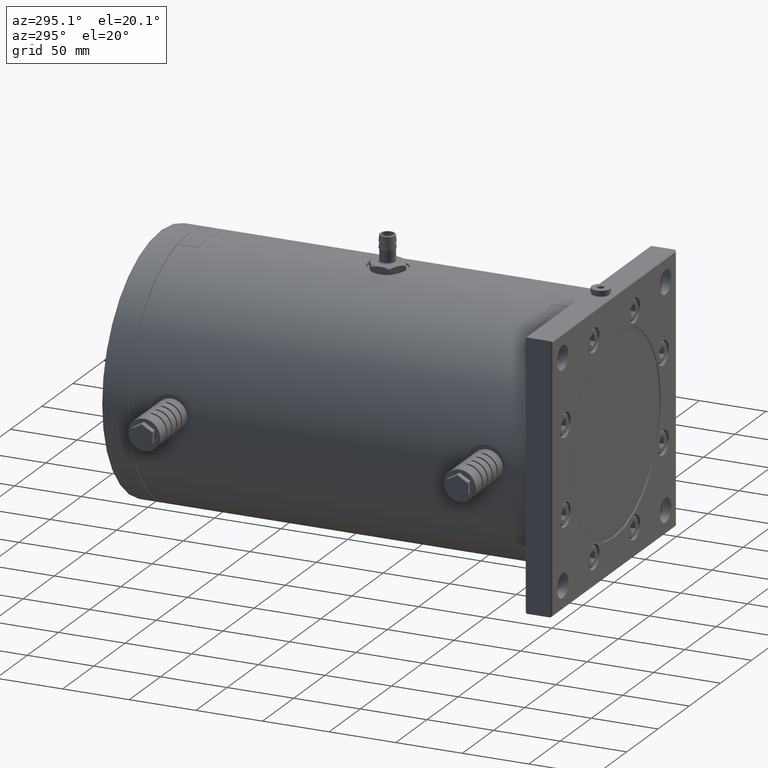
[diagram: clean part render]
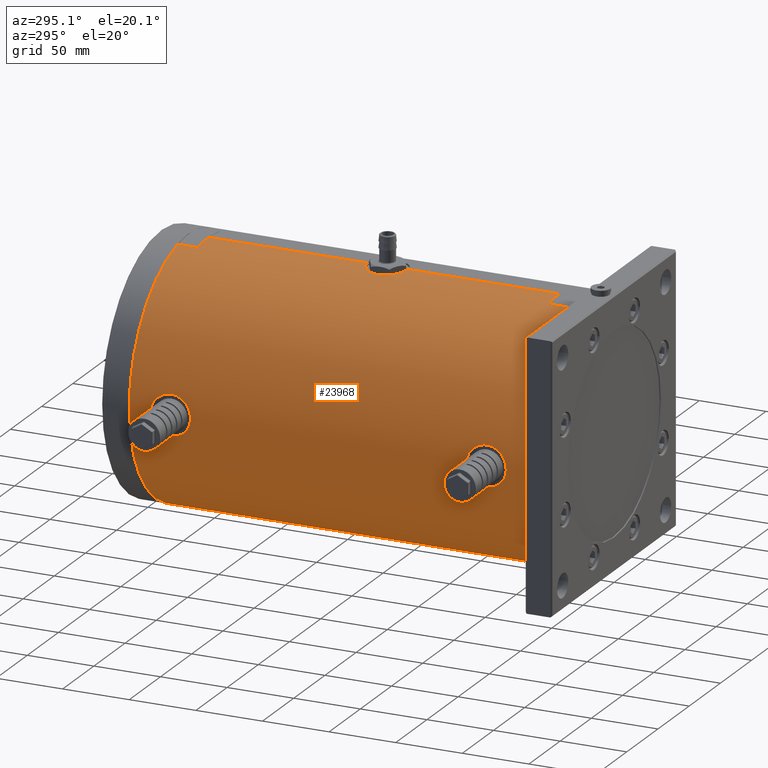
[diagram: same view with one face highlighted and labeled with its STEP entity id]
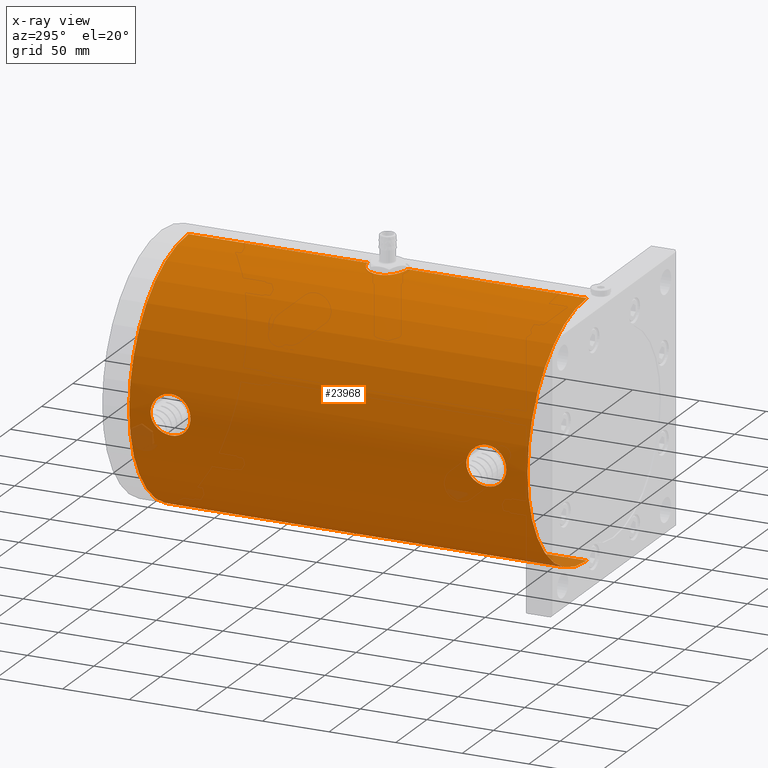
[diagram: x-ray of the same camera — body ghosted, the highlighted face saturated]
A machine part, auxiliary view. The second image highlights one B-rep face of the part: STEP entity #23968.
The next image is the same camera in x-ray: the body ghosted, the highlighted face saturated — about 1% of this face is hidden behind the body in this view.
In plain terms, the highlighted cylindrical surface (partial cylindrical patch) has radius 95 mm, axis along (0, -1, 0).
Its self-contained STEP definition (entity closure, byte-faithful):
#51 = CARTESIAN_POINT ( 'NONE',  ( -94.10670830719668300, 296.0006045169263300, -12.99930900640184100 ) ) ;
#396 = CARTESIAN_POINT ( 'NONE',  ( -94.59746841088082200, 300.6964620015556900, -8.745601748811100900 ) ) ;
#567 = CARTESIAN_POINT ( 'NONE',  ( -94.32759826050448700, 298.4079888304420400, -11.30431237425611500 ) ) ;
#677 = CARTESIAN_POINT ( 'NONE',  ( -94.87895241512907800, 302.7139216482131600, 4.817449934140620700 ) ) ;
#735 = CARTESIAN_POINT ( 'NONE',  ( -93.88853434243830500, 292.4086399488543900, 14.49014124802632300 ) ) ;
#766 = CARTESIAN_POINT ( 'NONE',  ( -94.48389310920484300, 40.20057625972086900, 9.913491127055863200 ) ) ;
#1043 = EDGE_CURVE ( 'NONE', #13489, #9054, #40050, .T. ) ;
#1442 = CARTESIAN_POINT ( 'NONE',  ( -94.77159016678152200, 64.98304233937553000, 6.646186053362664700 ) ) ;
#1573 = CARTESIAN_POINT ( 'NONE',  ( -0.9897520622051082500, 184.9753536299963100, 94.99609958115590300 ) ) ;
#1615 = CARTESIAN_POINT ( 'NONE',  ( -93.80831519646858400, 52.49251447707900600, 15.00000000000000000 ) ) ;
#1778 = CARTESIAN_POINT ( 'NONE',  ( -94.87895241512907800, 65.71392164821310200, 4.817449934140597600 ) ) ;
#2116 = CARTESIAN_POINT ( 'NONE',  ( -94.66937268861475700, 38.75778764119900900, 7.929638499274803500 ) ) ;
#2128 = CARTESIAN_POINT ( 'NONE',  ( -94.48443208369988600, 299.7873359972439300, 9.891340991452203500 ) ) ;
#2171 = CARTESIAN_POINT ( 'NONE',  ( -94.77159016678152200, 301.9830423393755200, 6.646186053362677100 ) ) ;
#2925 = CARTESIAN_POINT ( 'NONE',  ( -94.36748313137685800, 41.23649170612783600, 10.94983873391597700 ) ) ;
#3000 = CARTESIAN_POINT ( 'NONE',  ( -94.44530702829615600, 277.5438817851430700, -10.25707442559736800 ) ) ;
#3166 = CARTESIAN_POINT ( 'NONE',  ( -95.00002888294113700, 273.4998170746932300, -0.4844051046419959300 ) ) ;
#3340 = CARTESIAN_POINT ( 'NONE',  ( -11.92139876936948900, 179.1569248440521300, 94.25064967138209200 ) ) ;
#3593 = CARTESIAN_POINT ( 'NONE',  ( -94.03988826415103100, 44.84253263786659700, 13.47755452698379000 ) ) ;
#3838 = CARTESIAN_POINT ( 'NONE',  ( -93.93135529095216900, 293.3290332652563300, -14.20990197106558900 ) ) ;
#3915 = CARTESIAN_POINT ( 'NONE',  ( -94.25022968977724200, 42.34798509891982100, -11.92451984968890800 ) ) ;
#4292 = CARTESIAN_POINT ( 'NONE',  ( -14.99999999999998800, 170.0000000000000000, 93.80831519646859800 ) ) ;
#4329 = VERTEX_POINT ( 'NONE', #43769 ) ;
#4356 = CARTESIAN_POINT ( 'NONE',  ( -94.99600449145587800, 303.4747512497082200, -0.9987172192352307100 ) ) ;
#4479 = B_SPLINE_CURVE_WITH_KNOTS ( 'NONE', 3,
 ( #11815, #11259, #35431, #23680, #26429, #18643, #33656, #49924, #14475, #22611, #10020, #46122, #37640, #25916, #14124, #41792, #9397, #9567, #17689, #29585, #17175, #29414, #21476, #28910, #9903, #49134, #5241, #25098, #37513, #13849, #36853, #1778, #40816, #1442, #33179, #5740, #33358, #13510, #48962, #17857, #9741, #13663, #13167, #40977, #44809, #37014, #21130, #5408, #48618, #25270, #1615, #29244 ),
 .UNSPECIFIED., .F., .F.,
 ( 4, 2, 2, 2, 2, 2, 2, 2, 2, 2, 2, 2, 2, 2, 2, 2, 2, 2, 2, 2, 2, 2, 2, 2, 2, 4 ),
 ( 0.04697029817418261300, 0.04990521492440502800, 0.05137267329951625300, 0.05284013167462747000, 0.05430759004973868800, 0.05577504842484990600, 0.05870996517507232800, 0.06017742355018353800, 0.06164488192529475600, 0.06457979867551719200, 0.06604725705062840200, 0.06751471542573961300, 0.06898217380085081000, 0.07044963217596202100, 0.07338454892618444200, 0.07485200730129565300, 0.07631946567640685000, 0.07925438242662927200, 0.08072184080174046900, 0.08218929917685168000, 0.08512421592707408700, 0.08659167430218529800, 0.08805913267729649500, 0.08952659105240770600, 0.09099404942751890300, 0.09392896617774133800 ),
 .UNSPECIFIED. ) ;
#4522 = CARTESIAN_POINT ( 'NONE',  ( -94.70494762989046900, 301.5122145698367100, -7.525902816628558000 ) ) ;
#4696 = CARTESIAN_POINT ( 'NONE',  ( -93.86962066749536900, 291.9263862499502700, 14.61177383230986500 ) ) ;
#4813 = VECTOR ( 'NONE', #12635, 1000.000000000000000 ) ;
#5132 = ORIENTED_EDGE ( 'NONE', *, *, #1043, .F. ) ;
#5149 = CARTESIAN_POINT ( 'NONE',  ( -93.93124831220711700, 46.67285244748458000, 14.21061395753142500 ) ) ;
#5241 = CARTESIAN_POINT ( 'NONE',  ( -94.99995027470396300, 66.49968507306458300, -0.5050221338880415100 ) ) ;
#5374 = EDGE_CURVE ( 'NONE', #17467, #13981, #47299, .T. ) ;
#5408 = CARTESIAN_POINT ( 'NONE',  ( -93.88853434243830500, 55.40863994885446400, 14.49014124802629100 ) ) ;
#5740 = CARTESIAN_POINT ( 'NONE',  ( -94.59881055778817000, 63.70687035996877500, 8.731133722901285300 ) ) ;
#5909 = DIRECTION ( 'NONE',  ( 0.0000000000000000000, -1.000000000000000000, 0.0000000000000000000 ) ) ;
#5952 = CARTESIAN_POINT ( 'NONE',  ( -94.32855466410670400, 278.5994897332793700, 11.27932949991627600 ) ) ;
#6513 = CARTESIAN_POINT ( 'NONE',  ( -94.76868297108697400, 38.04059156841938700, 6.639635603231832700 ) ) ;
#6621 = CARTESIAN_POINT ( 'NONE',  ( -94.93990870032247600, 273.8850988269424500, 3.412990216215640200 ) ) ;
#7100 = CARTESIAN_POINT ( 'NONE',  ( -11.30685126148058800, 160.0938909763499100, 94.32735046004384600 ) ) ;
#7328 = CARTESIAN_POINT ( 'NONE',  ( -9.900873961528997600, 181.2790689550139100, 94.48343951357495000 ) ) ;
#7431 = CARTESIAN_POINT ( 'NONE',  ( -9.137519448877203100, 158.0943239369154000, 94.56029946170534100 ) ) ;
#7555 = LINE ( 'NONE', #21069, #48960 ) ;
#7559 = CARTESIAN_POINT ( 'NONE',  ( -94.92499479177213600, 36.98137147346716300, -3.895217003598379500 ) ) ;
#7867 = DIRECTION ( 'NONE',  ( 0.0000000000000000000, 1.000000000000000000, 0.0000000000000000000 ) ) ;
#8354 = CARTESIAN_POINT ( 'NONE',  ( -94.01263658803456700, 294.7111478668978200, 13.66236030938734000 ) ) ;
#8367 = CARTESIAN_POINT ( 'NONE',  ( -94.98469697190215300, 303.4039594589446000, 1.956974520176091700 ) ) ;
#8413 = CARTESIAN_POINT ( 'NONE',  ( -94.87804411974558100, 37.29214226034823600, 4.835085709195952000 ) ) ;
#8528 = CARTESIAN_POINT ( 'NONE',  ( -93.93238071392801200, 293.3489928711933300, 14.20313091443750200 ) ) ;
#8542 = CARTESIAN_POINT ( 'NONE',  ( -94.48303903515284200, 299.7757135154311600, -9.904683904312094000 ) ) ;
#8607 = EDGE_LOOP ( 'NONE', ( #40383, #26967 ) ) ;
#8974 = EDGE_LOOP ( 'NONE', ( #5132, #46119, #27050, #45749, #40322, #50344, #35826 ) ) ;
#9042 = DIRECTION ( 'NONE',  ( 0.0000000000000000000, 0.0000000000000000000, -1.000000000000000000 ) ) ;
#9054 = VERTEX_POINT ( 'NONE', #44658 ) ;
#9184 = B_SPLINE_CURVE_WITH_KNOTS ( 'NONE', 3,
 ( #47203, #39768, #50856, #19392, #27531, #3838, #31460, #19747, #23713, #51, #27696, #24229, #567, #32124, #8542, #39943, #396, #4522, #16283, #43918, #24059, #20267, #28218, #47895, #28033, #4356, #12296, #31961, #8367, #35987, #30888, #677, #24825, #2171, #19278, #46934, #31187, #2128, #45267, #45554, #28020, #23699, #12444, #40095, #8354, #12613, #8528, #735, #4696, #16625, #20423, #20253 ),
 .UNSPECIFIED., .F., .F.,
 ( 4, 2, 2, 2, 2, 2, 2, 2, 2, 2, 2, 2, 2, 2, 2, 2, 2, 2, 2, 2, 2, 2, 2, 2, 2, 4 ),
 ( 0.04697029817418253000, 0.04990521492440518800, 0.05137267329951643300, 0.05284013167462767900, 0.05430759004973892400, 0.05577504842485017000, 0.05870996517507266800, 0.06017742355018391300, 0.06164488192529515900, 0.06457979867551755200, 0.06604725705062874900, 0.06751471542573994600, 0.06898217380085114300, 0.07044963217596234000, 0.07338454892618473400, 0.07485200730129593100, 0.07631946567640714200, 0.07925438242662953500, 0.08072184080174077400, 0.08218929917685202600, 0.08512421592707439300, 0.08659167430218552000, 0.08805913267729663400, 0.08952659105240776100, 0.09099404942751887500, 0.09392896617774126900 ),
 .UNSPECIFIED. ) ;
#9397 = CARTESIAN_POINT ( 'NONE',  ( -94.59746841088083600, 63.69646200155579400, -8.745601748811148800 ) ) ;
#9405 = EDGE_CURVE ( 'NONE', #4329, #26540, #10628, .T. ) ;
#9567 = CARTESIAN_POINT ( 'NONE',  ( -94.70494762989045500, 64.51221456983678600, -7.525902816628598800 ) ) ;
#9741 = CARTESIAN_POINT ( 'NONE',  ( -94.25190144166802500, 60.66997791325508900, 11.91161020878169400 ) ) ;
#9903 = CARTESIAN_POINT ( 'NONE',  ( -94.98072416737427700, 66.37750883074095000, -1.974928369805089700 ) ) ;
#9926 = CARTESIAN_POINT ( 'NONE',  ( -94.36748313137687200, 278.2364917061278200, 10.94983873391598000 ) ) ;
#10020 = CARTESIAN_POINT ( 'NONE',  ( -94.14173571553070000, 59.42668987394009900, -12.74400509587708000 ) ) ;
#10628 = CIRCLE ( 'NONE', #31627, 95.00000000000000000 ) ;
#10683 = CIRCLE ( 'NONE', #39676, 95.00000000000000000 ) ;
#10913 = CARTESIAN_POINT ( 'NONE',  ( 1.163414472405625500E-014, 155.0000000000000000, 95.00000000000000000 ) ) ;
#11237 = CARTESIAN_POINT ( 'NONE',  ( -8.745527914398469000, 157.8035259543306900, 94.59747149197632200 ) ) ;
#11259 = CARTESIAN_POINT ( 'NONE',  ( -93.80831519646861200, 52.47952891109896700, -15.00000000000003400 ) ) ;
#11300 = CARTESIAN_POINT ( 'NONE',  ( -7.520548534252022900, 183.0153370826291700, 94.70537736621197700 ) ) ;
#11374 = FACE_BOUND ( 'NONE', #49689, .T. ) ;
#11411 = CARTESIAN_POINT ( 'NONE',  ( -14.87891903070524300, 168.0346857923252600, 93.82760887910062300 ) ) ;
#11436 = CARTESIAN_POINT ( 'NONE',  ( -94.25157263838188700, 42.36201207429996200, 11.90548420598173600 ) ) ;
#11544 = CARTESIAN_POINT ( 'NONE',  ( -94.56055086746125900, 39.59232760844501100, -9.134923622212763700 ) ) ;
#11708 = CARTESIAN_POINT ( 'NONE',  ( -94.04246882412427100, 44.85369107009911700, -13.45619493078528500 ) ) ;
#11815 = CARTESIAN_POINT ( 'NONE',  ( -93.80831519646858400, 51.50000000000000000, -15.00000000000002800 ) ) ;
#12296 = CARTESIAN_POINT ( 'NONE',  ( -94.99995027470397700, 303.4996850730646500, -0.5050221338880726000 ) ) ;
#12444 = CARTESIAN_POINT ( 'NONE',  ( -94.10793441593574500, 296.0158923470280000, 12.99042882810465800 ) ) ;
#12613 = CARTESIAN_POINT ( 'NONE',  ( -93.95736961739328300, 293.8094091017808300, 14.03740082913921200 ) ) ;
#12635 = DIRECTION ( 'NONE',  ( 0.0000000000000000000, -1.000000000000000000, 0.0000000000000000000 ) ) ;
#13167 = CARTESIAN_POINT ( 'NONE',  ( -94.10793441593575900, 59.01589234702814200, 12.99042882810463000 ) ) ;
#13200 = CARTESIAN_POINT ( 'NONE',  ( -95.00002888294115200, 36.49981707469341100, -0.4844051046420510500 ) ) ;
#13246 = EDGE_CURVE ( 'NONE', #31835, #36224, #4479, .T. ) ;
#13469 = CARTESIAN_POINT ( 'NONE',  ( -3.885177707232172900, 184.4964702713733700, 94.92169239028548600 ) ) ;
#13489 = VERTEX_POINT ( 'NONE', #41263 ) ;
#13510 = CARTESIAN_POINT ( 'NONE',  ( -94.48443208369985800, 62.78733599724390000, 9.891340991452183900 ) ) ;
#13663 = CARTESIAN_POINT ( 'NONE',  ( -94.14281545135514800, 59.43955877223873300, 12.73605687314764300 ) ) ;
#13849 = CARTESIAN_POINT ( 'NONE',  ( -94.94046288390254100, 66.11849273308045800, 3.396926466601001500 ) ) ;
#13959 = CARTESIAN_POINT ( 'NONE',  ( -94.99626690024331300, 36.52358456217673700, -0.9758713956846790700 ) ) ;
#13981 = VERTEX_POINT ( 'NONE', #28407 ) ;
#14003 = DIRECTION ( 'NONE',  ( 0.0000000000000000000, 0.0000000000000000000, 1.000000000000000000 ) ) ;
#14124 = CARTESIAN_POINT ( 'NONE',  ( -94.48303903515289900, 62.77571351543127800, -9.904683904312090400 ) ) ;
#14202 = CARTESIAN_POINT ( 'NONE',  ( -93.80831519646859800, 287.5072397086079800, 15.00000000000000400 ) ) ;
#14374 = CARTESIAN_POINT ( 'NONE',  ( -94.98102213261317700, 273.6205894021312000, -1.961755491190456200 ) ) ;
#14475 = CARTESIAN_POINT ( 'NONE',  ( -94.04163289701432400, 58.13439806164420500, -13.46201564116266300 ) ) ;
#14891 = CARTESIAN_POINT ( 'NONE',  ( -93.80831519646859800, 288.5000000000000000, -15.00000000000000000 ) ) ;
#15074 = CARTESIAN_POINT ( 'NONE',  ( -94.04246882412425600, 281.8536910700990500, -13.45619493078526400 ) ) ;
#15162 = EDGE_CURVE ( 'NONE', #36224, #31835, #39698, .T. ) ;
#15253 = CARTESIAN_POINT ( 'NONE',  ( -14.61564390480805600, 173.4099071864692700, 93.86901767248900800 ) ) ;
#15357 = CARTESIAN_POINT ( 'NONE',  ( -14.97607362371723900, 169.0192297546460100, 93.81215080312766500 ) ) ;
#15410 = CARTESIAN_POINT ( 'NONE',  ( 1.163414459189985600E-014, 320.0000000000000000, 95.00000000000000000 ) ) ;
#15668 = CARTESIAN_POINT ( 'NONE',  ( -94.70357379851975600, 38.50693656422134800, -7.511470866005247200 ) ) ;
#15832 = CARTESIAN_POINT ( 'NONE',  ( -94.59772656906936600, 39.30154833475064200, -8.742775963389188800 ) ) ;
#16019 = CARTESIAN_POINT ( 'NONE',  ( -94.79891482988398400, 37.82999861109352200, -6.194601624118984500 ) ) ;
#16283 = CARTESIAN_POINT ( 'NONE',  ( -94.77024364893898700, 301.9736281450303200, -6.665550418000696800 ) ) ;
#16625 = CARTESIAN_POINT ( 'NONE',  ( -93.82406618832860100, 290.4731066898058300, 14.90245211474739200 ) ) ;
#17175 = CARTESIAN_POINT ( 'NONE',  ( -94.87809334032290600, 65.70818825228346300, -4.834198854126833900 ) ) ;
#17467 = VERTEX_POINT ( 'NONE', #46560 ) ;
#17469 = CARTESIAN_POINT ( 'NONE',  ( -0.4957257290326333400, 185.0000000000000000, 94.99999999999995700 ) ) ;
#17473 = CARTESIAN_POINT ( 'NONE',  ( 0.0000000000000000000, 319.5000000000000000, -95.00000000000000000 ) ) ;
#17537 = CARTESIAN_POINT ( 'NONE',  ( -93.86898000874255400, 285.0918578296388000, 14.61587968356300100 ) ) ;
#17598 = VERTEX_POINT ( 'NONE', #31869 ) ;
#17689 = CARTESIAN_POINT ( 'NONE',  ( -94.77024364893901500, 64.97362814503046000, -6.665550418000714600 ) ) ;
#17714 = CARTESIAN_POINT ( 'NONE',  ( -93.95657218600889800, 283.2044567152497100, 14.04274931221658200 ) ) ;
#17857 = CARTESIAN_POINT ( 'NONE',  ( -94.32927271752035400, 61.42378679718520800, 11.29032559524112000 ) ) ;
#17872 = CARTESIAN_POINT ( 'NONE',  ( -94.66937268861475700, 275.7577876411990600, 7.929638499274862100 ) ) ;
#18040 = CARTESIAN_POINT ( 'NONE',  ( -93.80831519646859800, 288.5000000000000000, 15.00000000000000000 ) ) ;
#18379 = CARTESIAN_POINT ( 'NONE',  ( -94.10783178715783500, 280.9852489372373700, -12.99119397406102600 ) ) ;
#18643 = CARTESIAN_POINT ( 'NONE',  ( -93.93135529095218300, 56.32903326525637100, -14.20990197106560300 ) ) ;
#18835 = CARTESIAN_POINT ( 'NONE',  ( -12.99213190412557300, 162.4868778236738900, 94.10770204627584700 ) ) ;
#18890 = CARTESIAN_POINT ( 'NONE',  ( -94.56055086746121700, 276.5923276084449200, -9.134923622212722800 ) ) ;
#19068 = CARTESIAN_POINT ( 'NONE',  ( -5.295822318433785400, 184.0426686244557900, 94.85336944800396000 ) ) ;
#19171 = CARTESIAN_POINT ( 'NONE',  ( -14.80572125242350800, 167.5440881833144400, 93.83922464164801600 ) ) ;
#19228 = CARTESIAN_POINT ( 'NONE',  ( -12.74224703301775300, 177.9295268367057800, 94.14197426532722100 ) ) ;
#19278 = CARTESIAN_POINT ( 'NONE',  ( -94.70643203664796800, 301.5230245818477800, 7.507486332299238000 ) ) ;
#19338 = CARTESIAN_POINT ( 'NONE',  ( -14.99999999999998200, 169.5102315348347900, 93.80831519646858400 ) ) ;
#19392 = CARTESIAN_POINT ( 'NONE',  ( -93.86896980229734300, 291.9085621091962300, -14.61595082518200400 ) ) ;
#19747 = CARTESIAN_POINT ( 'NONE',  ( -94.01137892659113500, 294.6921172865617100, -13.67100401496020000 ) ) ;
#19827 = CARTESIAN_POINT ( 'NONE',  ( -94.10783178715782100, 43.98524893723738000, -12.99119397406104200 ) ) ;
#20038 = CARTESIAN_POINT ( 'NONE',  ( -93.82406587339129100, 49.53138685842100800, 14.90241759614649700 ) ) ;
#20253 = CARTESIAN_POINT ( 'NONE',  ( -93.80831519646859800, 288.5000000000000000, 15.00000000000000000 ) ) ;
#20267 = CARTESIAN_POINT ( 'NONE',  ( -94.92138313664015900, 302.9944470087731400, -3.892698021094414900 ) ) ;
#20423 = CARTESIAN_POINT ( 'NONE',  ( -93.80831519646862700, 289.4925144770790600, 15.00000000000000500 ) ) ;
#20775 = DIRECTION ( 'NONE',  ( 0.0000000000000000000, -1.000000000000000000, 0.0000000000000000000 ) ) ;
#21069 = CARTESIAN_POINT ( 'NONE',  ( 0.0000000000000000000, 320.0000000000000000, -95.00000000000000000 ) ) ;
#21130 = CARTESIAN_POINT ( 'NONE',  ( -93.93238071392805500, 56.34899287119340300, 14.20313091443747000 ) ) ;
#21326 = CARTESIAN_POINT ( 'NONE',  ( -93.93124831220708900, 283.6728524474844400, 14.21061395753144500 ) ) ;
#21476 = CARTESIAN_POINT ( 'NONE',  ( -94.93971952763384100, 66.11366808787478500, -3.417563617097097300 ) ) ;
#21499 = CARTESIAN_POINT ( 'NONE',  ( -94.10562595176298800, 280.9815274739498800, 13.01663102344745000 ) ) ;
#21607 = CARTESIAN_POINT ( 'NONE',  ( -4.827143008809980700, 184.2105927574497500, 94.87845373120943300 ) ) ;
#21827 = CARTESIAN_POINT ( 'NONE',  ( -94.70412209801064300, 275.5029562742665800, 7.504484703374504100 ) ) ;
#22166 = CARTESIAN_POINT ( 'NONE',  ( -94.01169574294216600, 282.3028992150225900, -13.66884056311764800 ) ) ;
#22339 = CARTESIAN_POINT ( 'NONE',  ( -93.80831519646859800, 288.0101142453500500, -14.99999999999999800 ) ) ;
#22504 = CYLINDRICAL_SURFACE ( 'NONE', #31697, 95.00000000000000000 ) ;
#22611 = CARTESIAN_POINT ( 'NONE',  ( -94.10670830719668300, 59.00060451692636600, -12.99930900640186200 ) ) ;
#22686 = CARTESIAN_POINT ( 'NONE',  ( -94.99994173333905700, 273.5003690222112000, 0.9857052918646608300 ) ) ;
#22803 = CARTESIAN_POINT ( 'NONE',  ( -6.198371339074863200, 156.3317111747047600, 94.79866771882818500 ) ) ;
#22856 = CARTESIAN_POINT ( 'NONE',  ( -94.66923715962271000, 275.7588534512033200, -7.931049060340573200 ) ) ;
#22974 = CARTESIAN_POINT ( 'NONE',  ( -13.66947033728563300, 163.8042981789272100, 94.01160399213134200 ) ) ;
#23039 = CARTESIAN_POINT ( 'NONE',  ( -13.66996888937772600, 176.1944174485713900, 94.01152974017466600 ) ) ;
#23217 = CARTESIAN_POINT ( 'NONE',  ( -8.741015634692082900, 182.1997564763275400, 94.59789338963753400 ) ) ;
#23320 = CARTESIAN_POINT ( 'NONE',  ( -14.99999999999998800, 170.0000000000000000, 93.80831519646859800 ) ) ;
#23385 = CARTESIAN_POINT ( 'NONE',  ( 0.0000000000000000000, 20.50000000000000000, 0.0000000000000000000 ) ) ;
#23680 = CARTESIAN_POINT ( 'NONE',  ( -93.86896980229734300, 54.90856210919631800, -14.61595082518203300 ) ) ;
#23699 = CARTESIAN_POINT ( 'NONE',  ( -94.14281545135511900, 296.4395587722386300, 12.73605687314769200 ) ) ;
#23713 = CARTESIAN_POINT ( 'NONE',  ( -94.04163289701432400, 295.1343980616442800, -13.46201564116264200 ) ) ;
#23796 = CARTESIAN_POINT ( 'NONE',  ( -93.88444751668328100, 47.59928355540247900, -14.51717612677287400 ) ) ;
#23968 = ADVANCED_FACE ( 'NONE', ( #44781, #11374, #41640 ), #22504, .T. ) ;
#24059 = CARTESIAN_POINT ( 'NONE',  ( -94.87809334032292000, 302.7081882522834300, -4.834198854126793100 ) ) ;
#24229 = CARTESIAN_POINT ( 'NONE',  ( -94.25035064254274200, 297.6538315224521500, -11.92374443805391400 ) ) ;
#24825 = CARTESIAN_POINT ( 'NONE',  ( -94.85394977208909500, 302.5465767844784200, 5.285332116630003800 ) ) ;
#24868 = CARTESIAN_POINT ( 'NONE',  ( -94.21376205251532100, 42.75942745434066000, 12.20009916580401200 ) ) ;
#25098 = CARTESIAN_POINT ( 'NONE',  ( -95.00009804290297700, 66.50062093850567600, 0.9817179058163095800 ) ) ;
#25270 = CARTESIAN_POINT ( 'NONE',  ( -93.82406618832860100, 53.47310668980580300, 14.90245211474735700 ) ) ;
#25474 = CARTESIAN_POINT ( 'NONE',  ( -94.21376205251530700, 279.7594274543406500, 12.20009916580405500 ) ) ;
#25817 = CARTESIAN_POINT ( 'NONE',  ( -94.79868897080815800, 274.8315804097149500, 6.197809448919938000 ) ) ;
#25854 = VERTEX_POINT ( 'NONE', #4292 ) ;
#25916 = CARTESIAN_POINT ( 'NONE',  ( -94.44409707085995400, 62.44557370800058000, -10.26807413454239700 ) ) ;
#26162 = CARTESIAN_POINT ( 'NONE',  ( -93.81215264043335400, 287.5189945864100900, -14.97606219265643500 ) ) ;
#26273 = CARTESIAN_POINT ( 'NONE',  ( -94.98472019448509200, 36.59586099382672600, 1.960100645772305100 ) ) ;
#26429 = CARTESIAN_POINT ( 'NONE',  ( -93.88775553143169400, 55.38981930322484700, -14.49517789102660500 ) ) ;
#26540 = VERTEX_POINT ( 'NONE', #49004 ) ;
#26686 = CARTESIAN_POINT ( 'NONE',  ( -94.48438925652162400, 277.2130741738603200, -9.891652883289189900 ) ) ;
#26805 = CARTESIAN_POINT ( 'NONE',  ( -13.45692680328943400, 163.3551811716562300, 94.04236384128027700 ) ) ;
#26864 = CARTESIAN_POINT ( 'NONE',  ( -94.70357379851969900, 275.5069365642212900, -7.511470866005177900 ) ) ;
#26967 = ORIENTED_EDGE ( 'NONE', *, *, #34914, .T. ) ;
#26988 = CARTESIAN_POINT ( 'NONE',  ( -14.51740466431845900, 166.1001922565810700, 93.88441198842862400 ) ) ;
#27050 = ORIENTED_EDGE ( 'NONE', *, *, #33222, .T. ) ;
#27060 = CARTESIAN_POINT ( 'NONE',  ( -14.04420087780745900, 175.2914344621768000, 93.95635260709138900 ) ) ;
#27224 = CARTESIAN_POINT ( 'NONE',  ( -14.49477813618946900, 173.8913325371766200, 93.88781741884088200 ) ) ;
#27442 = CARTESIAN_POINT ( 'NONE',  ( -93.92850961411883800, 46.66415415545522200, -14.23304735059196500 ) ) ;
#27500 = ORIENTED_EDGE ( 'NONE', *, *, #15162, .T. ) ;
#27531 = CARTESIAN_POINT ( 'NONE',  ( -93.88775553143170800, 292.3898193032249000, -14.49517789102659100 ) ) ;
#27611 = CARTESIAN_POINT ( 'NONE',  ( -94.44530702829614200, 40.54388178514301400, -10.25707442559743400 ) ) ;
#27696 = CARTESIAN_POINT ( 'NONE',  ( -94.14173571553070000, 296.4266898739400100, -12.74400509587705900 ) ) ;
#27776 = CARTESIAN_POINT ( 'NONE',  ( -93.83923934543649600, 49.04350519088849600, -14.80562835958113900 ) ) ;
#27941 = CARTESIAN_POINT ( 'NONE',  ( -93.80831519646858400, 51.50000000000000000, -15.00000000000002800 ) ) ;
#28020 = CARTESIAN_POINT ( 'NONE',  ( -94.25190144166802500, 297.6699779132551400, 11.91161020878174900 ) ) ;
#28033 = CARTESIAN_POINT ( 'NONE',  ( -94.98072416737429100, 303.3775088307410200, -1.974928369805050200 ) ) ;
#28218 = CARTESIAN_POINT ( 'NONE',  ( -94.93971952763386900, 303.1136680878748300, -3.417563617097069400 ) ) ;
#28407 = CARTESIAN_POINT ( 'NONE',  ( -93.80831519646859800, 288.5000000000000000, -15.00000000000000000 ) ) ;
#28910 = CARTESIAN_POINT ( 'NONE',  ( -94.96938971692996700, 66.30519956646678300, -2.458678884394621900 ) ) ;
#29012 = DIRECTION ( 'NONE',  ( 0.0000000000000000000, -1.000000000000000000, 0.0000000000000000000 ) ) ;
#29039 = VERTEX_POINT ( 'NONE', #17473 ) ;
#29244 = CARTESIAN_POINT ( 'NONE',  ( -93.80831519646859800, 51.50000000000000000, 15.00000000000000000 ) ) ;
#29414 = CARTESIAN_POINT ( 'NONE',  ( -94.92138313664014500, 65.99444700877320700, -3.892698021094450400 ) ) ;
#29571 = DIRECTION ( 'NONE',  ( -0.0000000000000000000, -1.000000000000000000, -0.0000000000000000000 ) ) ;
#29585 = CARTESIAN_POINT ( 'NONE',  ( -94.85298871533645100, 65.54009835291640200, -5.302611873577146400 ) ) ;
#29607 = CARTESIAN_POINT ( 'NONE',  ( -94.25157263838188700, 279.3620120742999700, 11.90548420598174900 ) ) ;
#30437 = CARTESIAN_POINT ( 'NONE',  ( -94.92499479177213600, 273.9813714734670500, -3.895217003598351500 ) ) ;
#30568 = EDGE_CURVE ( 'NONE', #17598, #26540, #47170, .T. ) ;
#30616 = CARTESIAN_POINT ( 'NONE',  ( -93.88444751668332300, 284.5992835554024500, -14.51717612677284000 ) ) ;
#30784 = CARTESIAN_POINT ( 'NONE',  ( -94.14241316116154200, 280.5654331655535400, -12.73895744354718800 ) ) ;
#30875 = CARTESIAN_POINT ( 'NONE',  ( -93.95657218600889800, 46.20445671524974100, 14.04274931221656600 ) ) ;
#30888 = CARTESIAN_POINT ( 'NONE',  ( -94.92219359538482600, 302.9997515216273300, 3.873060585707311700 ) ) ;
#30960 = CARTESIAN_POINT ( 'NONE',  ( -14.20928237057360900, 174.8308753498255600, 93.93144919250566700 ) ) ;
#31187 = CARTESIAN_POINT ( 'NONE',  ( -94.56107564678468700, 300.4118879784994600, 9.129595024509098900 ) ) ;
#31211 = CARTESIAN_POINT ( 'NONE',  ( -94.01169574294209500, 45.30289921502258500, -13.66884056311768300 ) ) ;
#31240 = CARTESIAN_POINT ( 'NONE',  ( -4.835264928431986000, 155.7666616794618300, 94.88123653894554400 ) ) ;
#31372 = CARTESIAN_POINT ( 'NONE',  ( -94.10562595176297400, 43.98152747394988900, 13.01663102344741100 ) ) ;
#31460 = CARTESIAN_POINT ( 'NONE',  ( -93.95624073416566100, 293.7894349138566700, -14.04494733203607200 ) ) ;
#31627 = AXIS2_PLACEMENT_3D ( 'NONE', #23385, #7867, #35497 ) ;
#31697 = AXIS2_PLACEMENT_3D ( 'NONE', #33139, #20775, #9042 ) ;
#31835 = VERTEX_POINT ( 'NONE', #43169 ) ;
#31869 = CARTESIAN_POINT ( 'NONE',  ( 1.163414472405625500E-014, 155.0000000000000000, 95.00000000000000000 ) ) ;
#31906 = CARTESIAN_POINT ( 'NONE',  ( -94.70412209801064300, 38.50295627426661600, 7.504484703374505000 ) ) ;
#31961 = CARTESIAN_POINT ( 'NONE',  ( -95.00009804290297700, 303.5006209385057300, 0.9817179058163078000 ) ) ;
#32124 = CARTESIAN_POINT ( 'NONE',  ( -94.44409707085993900, 299.4455737080005000, -10.26807413454237800 ) ) ;
#32803 = CARTESIAN_POINT ( 'NONE',  ( -3.409808312866802600, 184.6154859369769700, 94.93999957837142700 ) ) ;
#32835 = EDGE_CURVE ( 'NONE', #13489, #29039, #10683, .T. ) ;
#33139 = CARTESIAN_POINT ( 'NONE',  ( 0.0000000000000000000, 320.0000000000000000, 0.0000000000000000000 ) ) ;
#33143 = CARTESIAN_POINT ( 'NONE',  ( -2.450446919008703300, 184.8065705618009500, 94.96960367701234400 ) ) ;
#33179 = CARTESIAN_POINT ( 'NONE',  ( -94.70643203664798200, 64.52302458184792000, 7.507486332299191800 ) ) ;
#33206 = CARTESIAN_POINT ( 'NONE',  ( -93.82406587339127700, 286.5313868584210000, 14.90241759614651900 ) ) ;
#33222 = EDGE_CURVE ( 'NONE', #29039, #4329, #7555, .T. ) ;
#33248 = CARTESIAN_POINT ( 'NONE',  ( -94.93990870032243400, 36.88509882694241800, 3.412990216215627400 ) ) ;
#33342 = CARTESIAN_POINT ( 'NONE',  ( 0.0000000000000000000, 319.5000000000000000, 0.0000000000000000000 ) ) ;
#33358 = CARTESIAN_POINT ( 'NONE',  ( -94.56107564678470100, 63.41188797849943600, 9.129595024509086400 ) ) ;
#33656 = CARTESIAN_POINT ( 'NONE',  ( -93.95624073416566100, 56.78943491385681600, -14.04494733203609000 ) ) ;
#34095 = B_SPLINE_CURVE_WITH_KNOTS ( 'NONE', 3,
 ( #10913, #50273, #39209, #38874, #42819, #46992, #31240, #22803, #42665, #34540, #38501, #11237, #7431, #46829, #34701, #7100, #46650, #35057, #18835, #26805, #22974, #43006, #26988, #19171, #11411, #15357, #19338, #23320 ),
 .UNSPECIFIED., .F., .F.,
 ( 4, 2, 2, 2, 2, 2, 2, 2, 2, 2, 2, 2, 2, 4 ),
 ( 0.02349077195121200900, 0.02495824234014767600, 0.02642571272908334300, 0.02936065350695465600, 0.03082812389589031200, 0.03229559428482597200, 0.03376306467376162500, 0.03523053506269728500, 0.03816547584056860500, 0.03963294622950422300, 0.04110041661843984900, 0.04403535739631117600, 0.04550282778524684200, 0.04697029817418250200 ),
 .UNSPECIFIED. ) ;
#34241 = CARTESIAN_POINT ( 'NONE',  ( -93.83923934543651100, 286.0435051908884200, -14.80562835958110300 ) ) ;
#34416 = CARTESIAN_POINT ( 'NONE',  ( -94.79891482988394100, 274.8299986110934600, -6.194601624118960500 ) ) ;
#34540 = CARTESIAN_POINT ( 'NONE',  ( -7.514718654598655500, 157.0088197588090700, 94.70331532815032500 ) ) ;
#34599 = CARTESIAN_POINT ( 'NONE',  ( -14.99999999999998600, 170.9799177360498600, 93.80831519646858400 ) ) ;
#34701 = CARTESIAN_POINT ( 'NONE',  ( -10.25924209550835200, 159.0459175653471100, 94.44507098939067200 ) ) ;
#34886 = CARTESIAN_POINT ( 'NONE',  ( -94.79868897080817200, 37.83158040971499500, 6.197809448919937100 ) ) ;
#34914 = EDGE_CURVE ( 'NONE', #13981, #17467, #9184, .T. ) ;
#34945 = CARTESIAN_POINT ( 'NONE',  ( -11.30152442825857600, 179.9112090523846600, 94.32793604264082900 ) ) ;
#35057 = CARTESIAN_POINT ( 'NONE',  ( -12.74000687831982100, 162.0671253104457900, 94.14227079815108800 ) ) ;
#35200 = CARTESIAN_POINT ( 'NONE',  ( -94.88145395093218300, 37.26521710600039900, -4.831052160519914400 ) ) ;
#35373 = CARTESIAN_POINT ( 'NONE',  ( -94.66923715962275300, 38.75885345120342200, -7.931049060340625600 ) ) ;
#35431 = CARTESIAN_POINT ( 'NONE',  ( -93.82366184677012200, 53.45415914592869200, -14.90498301702934300 ) ) ;
#35497 = DIRECTION ( 'NONE',  ( 0.0000000000000000000, 0.0000000000000000000, 1.000000000000000000 ) ) ;
#35559 = CARTESIAN_POINT ( 'NONE',  ( -94.76836789776876900, 38.04279519211542700, -6.644210319944889400 ) ) ;
#35725 = CARTESIAN_POINT ( 'NONE',  ( -94.98102213261320500, 36.62058940213120900, -1.961755491190533900 ) ) ;
#35826 = ORIENTED_EDGE ( 'NONE', *, *, #51305, .T. ) ;
#35897 = CARTESIAN_POINT ( 'NONE',  ( -94.96958662264620400, 36.69353628327576900, -2.451418906362813100 ) ) ;
#35987 = CARTESIAN_POINT ( 'NONE',  ( -94.94046288390256900, 303.1184927330804700, 3.396926466601011700 ) ) ;
#36224 = VERTEX_POINT ( 'NONE', #45286 ) ;
#36658 = VECTOR ( 'NONE', #5909, 1000.000000000000000 ) ;
#36813 = CARTESIAN_POINT ( 'NONE',  ( -1.966454739870833200, 184.8786384203704100, 94.98090124089985400 ) ) ;
#36853 = CARTESIAN_POINT ( 'NONE',  ( -94.92219359538482600, 65.99975152162728900, 3.873060585707290400 ) ) ;
#37014 = CARTESIAN_POINT ( 'NONE',  ( -93.95736961739329700, 56.80940910178091500, 14.03740082913919600 ) ) ;
#37513 = CARTESIAN_POINT ( 'NONE',  ( -94.98469697190212500, 66.40395945894461200, 1.956974520176094200 ) ) ;
#37537 = CARTESIAN_POINT ( 'NONE',  ( -94.48389310920485700, 277.2005762597208900, 9.913491127055870300 ) ) ;
#37640 = CARTESIAN_POINT ( 'NONE',  ( -94.32759826050448700, 61.40798883044212900, -11.30431237425613000 ) ) ;
#38053 = CARTESIAN_POINT ( 'NONE',  ( -94.92127614422634000, 274.0062554731269400, 3.895207947618801700 ) ) ;
#38229 = CARTESIAN_POINT ( 'NONE',  ( -93.92850961411886600, 283.6641541554553200, -14.23304735059193100 ) ) ;
#38401 = CARTESIAN_POINT ( 'NONE',  ( -94.85336888167155700, 274.4573559571378500, 5.295534377820252400 ) ) ;
#38501 = CARTESIAN_POINT ( 'NONE',  ( -7.934126997665085700, 157.2607744963389400, 94.66897855138043400 ) ) ;
#38566 = CARTESIAN_POINT ( 'NONE',  ( -94.88145395093219700, 274.2652171060004200, -4.831052160519883300 ) ) ;
#38874 = CARTESIAN_POINT ( 'NONE',  ( -1.966959107339791800, 155.1212794056288000, 94.98091395833112900 ) ) ;
#38932 = CARTESIAN_POINT ( 'NONE',  ( -9.136242630625490700, 181.9068792002096600, 94.56043949830076700 ) ) ;
#39168 = CARTESIAN_POINT ( 'NONE',  ( -93.81215264043342500, 50.51899458641035800, -14.97606219265648500 ) ) ;
#39209 = CARTESIAN_POINT ( 'NONE',  ( -0.9812898046238481800, 155.0239416075305600, 94.99621052867945500 ) ) ;
#39215 = CARTESIAN_POINT ( 'NONE',  ( -93.88750099282263800, 47.61608616450845900, 14.49683123521205300 ) ) ;
#39340 = CARTESIAN_POINT ( 'NONE',  ( -94.14241316116154200, 43.56543316555349300, -12.73895744354720000 ) ) ;
#39676 = AXIS2_PLACEMENT_3D ( 'NONE', #33342, #29571, #14003 ) ;
#39698 = B_SPLINE_CURVE_WITH_KNOTS ( 'NONE', 3,
 ( #43943, #49795, #20038, #45358, #39215, #5149, #30875, #3593, #31372, #24868, #11436, #42213, #2925, #766, #47536, #2116, #31906, #6513, #34886, #45751, #8413, #47550, #33248, #26273, #49373, #13200, #13959, #35725, #35897, #7559, #35200, #16019, #35559, #15668, #35373, #15832, #11544, #51287, #27611, #42965, #3915, #39340, #19827, #11708, #31211, #27442, #23796, #27776, #50941, #39168, #43318, #27941 ),
 .UNSPECIFIED., .F., .F.,
 ( 4, 2, 2, 2, 2, 2, 2, 2, 2, 2, 2, 2, 2, 2, 2, 2, 2, 2, 2, 2, 2, 2, 2, 2, 2, 4 ),
 ( 0.0000000000000000000, 0.002935643635886416800, 0.004403465453829626300, 0.005871287271772836200, 0.008806930907659235200, 0.01027475272560243700, 0.01174257454354563800, 0.01467821817943205600, 0.01614603999737526000, 0.01761386181531846000, 0.01908168363326166700, 0.02054950545120487100, 0.02348514908709127900, 0.02495297090503448300, 0.02642079272297769000, 0.02935643635886409800, 0.03082425817680730500, 0.03229207999475050600, 0.03375990181269370600, 0.03522772363063690600, 0.03816336726652331400, 0.03963118908446652800, 0.04109901090240974200, 0.04403465453829617100, 0.04550247635623939900, 0.04697029817418261300 ),
 .UNSPECIFIED. ) ;
#39768 = CARTESIAN_POINT ( 'NONE',  ( -93.80831519646859800, 289.4795289110990100, -15.00000000000000000 ) ) ;
#39943 = CARTESIAN_POINT ( 'NONE',  ( -94.56001500819820600, 300.4035073954917200, -9.140623075693014200 ) ) ;
#40050 = LINE ( 'NONE', #15410, #4813 ) ;
#40095 = CARTESIAN_POINT ( 'NONE',  ( -94.04291593617846000, 295.1524698809672600, 13.45304885120807700 ) ) ;
#40322 = ORIENTED_EDGE ( 'NONE', *, *, #30568, .F. ) ;
#40383 = ORIENTED_EDGE ( 'NONE', *, *, #5374, .T. ) ;
#40816 = CARTESIAN_POINT ( 'NONE',  ( -94.85394977208909500, 65.54657678447834700, 5.285332116630000200 ) ) ;
#40977 = CARTESIAN_POINT ( 'NONE',  ( -94.04291593617846000, 58.15246988096733800, 13.45304885120804700 ) ) ;
#41263 = CARTESIAN_POINT ( 'NONE',  ( 1.163414459189985600E-014, 319.5000000000000000, 95.00000000000000000 ) ) ;
#41355 = CARTESIAN_POINT ( 'NONE',  ( -93.88750099282265200, 284.6160861645083200, 14.49683123521207900 ) ) ;
#41525 = CARTESIAN_POINT ( 'NONE',  ( -94.56101595071075400, 276.5802206482534300, 9.159226512622456800 ) ) ;
#41640 = FACE_BOUND ( 'NONE', #8607, .T. ) ;
#41651 = ORIENTED_EDGE ( 'NONE', *, *, #13246, .T. ) ;
#41792 = CARTESIAN_POINT ( 'NONE',  ( -94.56001500819820600, 63.40350739549173700, -9.140623075693001800 ) ) ;
#42040 = CARTESIAN_POINT ( 'NONE',  ( -94.32755499132011300, 278.5919397803754700, -11.30516479866415700 ) ) ;
#42201 = CARTESIAN_POINT ( 'NONE',  ( -94.99626690024329900, 273.5235845621766700, -0.9758713956846152300 ) ) ;
#42213 = CARTESIAN_POINT ( 'NONE',  ( -94.32855466410673300, 41.59948973327944800, 11.27932949991626500 ) ) ;
#42369 = CARTESIAN_POINT ( 'NONE',  ( -94.76836789776874100, 275.0427951921153600, -6.644210319944813900 ) ) ;
#42665 = CARTESIAN_POINT ( 'NONE',  ( -6.647814109865791500, 156.5445799739454200, 94.76811435372933100 ) ) ;
#42819 = CARTESIAN_POINT ( 'NONE',  ( -2.456418542420544200, 155.1943692634086500, 94.96945662743620200 ) ) ;
#42891 = CARTESIAN_POINT ( 'NONE',  ( -14.90490832825563300, 171.9549329441818800, 93.82367403767098300 ) ) ;
#42965 = CARTESIAN_POINT ( 'NONE',  ( -94.32755499132015600, 41.59193978037554000, -11.30516479866421200 ) ) ;
#43006 = CARTESIAN_POINT ( 'NONE',  ( -14.23340861354012300, 165.1652672596813400, 93.92845414005829200 ) ) ;
#43169 = CARTESIAN_POINT ( 'NONE',  ( -93.80831519646858400, 51.50000000000000000, -15.00000000000002800 ) ) ;
#43318 = CARTESIAN_POINT ( 'NONE',  ( -93.80831519646861200, 51.01011424535013800, -15.00000000000002800 ) ) ;
#43769 = CARTESIAN_POINT ( 'NONE',  ( 0.0000000000000000000, 20.50000000000000000, -95.00000000000000000 ) ) ;
#43918 = CARTESIAN_POINT ( 'NONE',  ( -94.85298871533645100, 302.5400983529164000, -5.302611873577141900 ) ) ;
#43943 = CARTESIAN_POINT ( 'NONE',  ( -93.80831519646859800, 51.50000000000000000, 15.00000000000000000 ) ) ;
#44658 = CARTESIAN_POINT ( 'NONE',  ( 1.163414457908255300E-014, 185.0000000000000300, 95.00000000000000000 ) ) ;
#44781 = FACE_OUTER_BOUND ( 'NONE', #8974, .T. ) ;
#44809 = CARTESIAN_POINT ( 'NONE',  ( -94.01263658803453900, 57.71114786689783900, 13.66236030938731500 ) ) ;
#45108 = CARTESIAN_POINT ( 'NONE',  ( 1.163414457908255300E-014, 185.0000000000000300, 95.00000000000000000 ) ) ;
#45171 = CARTESIAN_POINT ( 'NONE',  ( -94.03988826415104500, 281.8425326378665000, 13.47755452698380200 ) ) ;
#45267 = CARTESIAN_POINT ( 'NONE',  ( -94.44560342858160600, 299.4585341279672500, 10.25420786198594800 ) ) ;
#45286 = CARTESIAN_POINT ( 'NONE',  ( -93.80831519646859800, 51.50000000000000000, 15.00000000000000000 ) ) ;
#45358 = CARTESIAN_POINT ( 'NONE',  ( -93.86898000874256800, 48.09185782963890400, 14.61587968356298400 ) ) ;
#45554 = CARTESIAN_POINT ( 'NONE',  ( -94.32927271752036800, 298.4237867971853000, 11.29032559524112500 ) ) ;
#45641 = CARTESIAN_POINT ( 'NONE',  ( 1.163414459189985600E-014, 320.0000000000000000, 95.00000000000000000 ) ) ;
#45749 = ORIENTED_EDGE ( 'NONE', *, *, #9405, .T. ) ;
#45751 = CARTESIAN_POINT ( 'NONE',  ( -94.85336888167159900, 37.45735595713783500, 5.295534377820240800 ) ) ;
#46021 = CARTESIAN_POINT ( 'NONE',  ( -93.82761814880943500, 286.5342136259708900, -14.87886065367532500 ) ) ;
#46119 = ORIENTED_EDGE ( 'NONE', *, *, #32835, .T. ) ;
#46122 = CARTESIAN_POINT ( 'NONE',  ( -94.25035064254279900, 60.65383152245215800, -11.92374443805394100 ) ) ;
#46530 = CARTESIAN_POINT ( 'NONE',  ( -94.87804411974559600, 274.2921422603482100, 4.835085709195988500 ) ) ;
#46560 = CARTESIAN_POINT ( 'NONE',  ( -93.80831519646859800, 288.5000000000000000, 15.00000000000000000 ) ) ;
#46650 = CARTESIAN_POINT ( 'NONE',  ( -11.92593052055828400, 160.8498477817011900, 94.25004979514348200 ) ) ;
#46716 = CARTESIAN_POINT ( 'NONE',  ( -6.659650327716604100, 183.4765782753386000, 94.77066411176160400 ) ) ;
#46829 = CARTESIAN_POINT ( 'NONE',  ( -9.893948470195733000, 158.7150911449481900, 94.48414829819394400 ) ) ;
#46888 = CARTESIAN_POINT ( 'NONE',  ( -10.26453126025192300, 180.9489053255547300, 94.44448311640057600 ) ) ;
#46934 = CARTESIAN_POINT ( 'NONE',  ( -94.59881055778812700, 300.7068703599686600, 8.731133722901335000 ) ) ;
#46992 = CARTESIAN_POINT ( 'NONE',  ( -3.899735492478625200, 155.4826022530175500, 94.92480602957691400 ) ) ;
#47170 = LINE ( 'NONE', #45641, #36658 ) ;
#47203 = CARTESIAN_POINT ( 'NONE',  ( -93.80831519646859800, 288.5000000000000000, -15.00000000000000000 ) ) ;
#47299 = B_SPLINE_CURVE_WITH_KNOTS ( 'NONE', 3,
 ( #18040, #14202, #33206, #17537, #41355, #21326, #17714, #45171, #21499, #25474, #29607, #5952, #9926, #37537, #41525, #17872, #21827, #49496, #25817, #38401, #46530, #38053, #6621, #50002, #22686, #3166, #42201, #14374, #50160, #30437, #38566, #34416, #42369, #26864, #22856, #50333, #18890, #26686, #3000, #42040, #50513, #30784, #18379, #15074, #22166, #38229, #30616, #34241, #46021, #26162, #22339, #14891 ),
 .UNSPECIFIED., .F., .F.,
 ( 4, 2, 2, 2, 2, 2, 2, 2, 2, 2, 2, 2, 2, 2, 2, 2, 2, 2, 2, 2, 2, 2, 2, 2, 2, 4 ),
 ( 0.0000000000000000000, 0.002935643635886357800, 0.004403465453829537800, 0.005871287271772718300, 0.008806930907659079100, 0.01027475272560225900, 0.01174257454354544000, 0.01467821817943180100, 0.01614603999737502700, 0.01761386181531825500, 0.01908168363326148700, 0.02054950545120471500, 0.02348514908709114000, 0.02495297090503434700, 0.02642079272297755800, 0.02935643635886395200, 0.03082425817680711400, 0.03229207999475027700, 0.03375990181269343500, 0.03522772363063660100, 0.03816336726652303600, 0.03963118908446625800, 0.04109901090240947900, 0.04403465453829592100, 0.04550247635623922600, 0.04697029817418253000 ),
 .UNSPECIFIED. ) ;
#47465 = EDGE_CURVE ( 'NONE', #17598, #25854, #34095, .T. ) ;
#47536 = CARTESIAN_POINT ( 'NONE',  ( -94.56101595071075400, 39.58022064825345900, 9.159226512622408800 ) ) ;
#47550 = CARTESIAN_POINT ( 'NONE',  ( -94.92127614422635400, 37.00625547312698400, 3.895207947618759500 ) ) ;
#47895 = CARTESIAN_POINT ( 'NONE',  ( -94.96938971692996700, 303.3051995664667400, -2.458678884394590400 ) ) ;
#48618 = CARTESIAN_POINT ( 'NONE',  ( -93.86962066749539700, 54.92638624995032600, 14.61177383230983300 ) ) ;
#48960 = VECTOR ( 'NONE', #29012, 1000.000000000000000 ) ;
#48962 = CARTESIAN_POINT ( 'NONE',  ( -94.44560342858162000, 62.45853412796717000, 10.25420786198595400 ) ) ;
#49004 = CARTESIAN_POINT ( 'NONE',  ( 1.163414459189985600E-014, 20.50000000000000000, 95.00000000000000000 ) ) ;
#49134 = CARTESIAN_POINT ( 'NONE',  ( -94.99600449145586400, 66.47475124970823400, -0.9987172192352823400 ) ) ;
#49373 = CARTESIAN_POINT ( 'NONE',  ( -94.99994173333904300, 36.50036902221123100, 0.9857052918646211900 ) ) ;
#49496 = CARTESIAN_POINT ( 'NONE',  ( -94.76868297108693200, 275.0405915684193000, 6.639635603231840700 ) ) ;
#49689 = EDGE_LOOP ( 'NONE', ( #27500, #41651 ) ) ;
#49795 = CARTESIAN_POINT ( 'NONE',  ( -93.80831519646859800, 50.50723970860799700, 15.00000000000000200 ) ) ;
#49924 = CARTESIAN_POINT ( 'NONE',  ( -94.01137892659113500, 57.69211728656174600, -13.67100401496021300 ) ) ;
#49940 = B_SPLINE_CURVE_WITH_KNOTS ( 'NONE', 3,
 ( #50341, #34599, #42891, #15253, #27224, #30960, #27060, #23039, #50702, #50868, #19228, #3340, #34945, #46888, #7328, #38932, #23217, #11300, #46716, #19068, #21607, #13469, #32803, #33143, #36813, #1573, #17469, #45108 ),
 .UNSPECIFIED., .F., .F.,
 ( 4, 2, 2, 2, 2, 2, 2, 2, 2, 2, 2, 2, 2, 4 ),
 ( 0.04697029817418250200, 0.04990637994245425400, 0.05137442082659016800, 0.05284246171072608900, 0.05431050259486200300, 0.05577854347899792500, 0.05871462524726975300, 0.06018266613140570200, 0.06165070701554164300, 0.06458678878381352000, 0.06605482966794945500, 0.06752287055208539000, 0.06899091143622132500, 0.07045895232035724600 ),
 .UNSPECIFIED. ) ;
#50002 = CARTESIAN_POINT ( 'NONE',  ( -94.98472019448510700, 273.5958609938267000, 1.960100645772335100 ) ) ;
#50160 = CARTESIAN_POINT ( 'NONE',  ( -94.96958662264621900, 273.6935362832757100, -2.451418906362795400 ) ) ;
#50273 = CARTESIAN_POINT ( 'NONE',  ( -0.4899304505192349500, 155.0000000000000000, 95.00000000000002800 ) ) ;
#50333 = CARTESIAN_POINT ( 'NONE',  ( -94.59772656906932300, 276.3015483347505200, -8.742775963389153300 ) ) ;
#50341 = CARTESIAN_POINT ( 'NONE',  ( -14.99999999999998800, 170.0000000000000000, 93.80831519646859800 ) ) ;
#50344 = ORIENTED_EDGE ( 'NONE', *, *, #47465, .T. ) ;
#50513 = CARTESIAN_POINT ( 'NONE',  ( -94.25022968977728500, 279.3479850989198200, -11.92451984968889200 ) ) ;
#50702 = CARTESIAN_POINT ( 'NONE',  ( -13.46081870853695300, 176.6368413777237000, 94.04180468232975400 ) ) ;
#50856 = CARTESIAN_POINT ( 'NONE',  ( -93.82366184677013600, 290.4541591459286600, -14.90498301702932000 ) ) ;
#50868 = CARTESIAN_POINT ( 'NONE',  ( -12.99775033139464500, 177.5033186057833100, 94.10692405203926100 ) ) ;
#50941 = CARTESIAN_POINT ( 'NONE',  ( -93.82761814880943500, 49.53421362597101300, -14.87886065367536200 ) ) ;
#51287 = CARTESIAN_POINT ( 'NONE',  ( -94.48438925652169500, 40.21307417386039200, -9.891652883289218300 ) ) ;
#51305 = EDGE_CURVE ( 'NONE', #25854, #9054, #49940, .T. ) ;